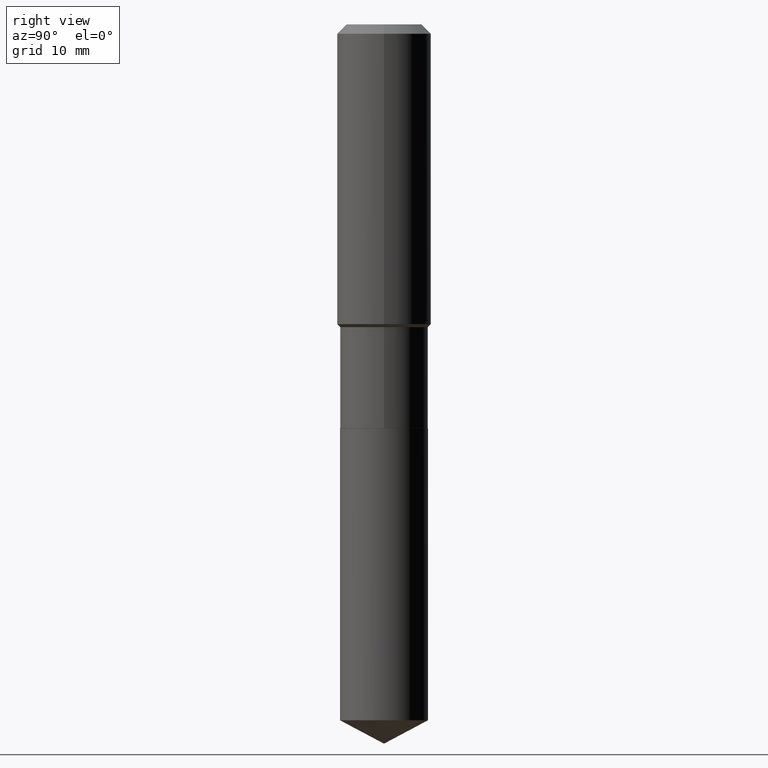
[diagram: clean part render]
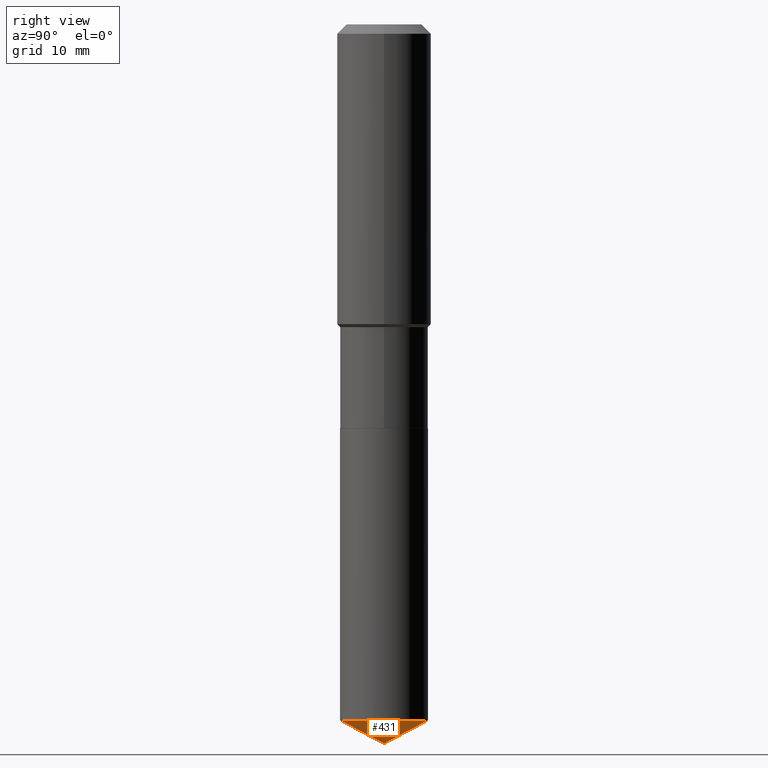
[diagram: same view with one face highlighted and labeled with its STEP entity id]
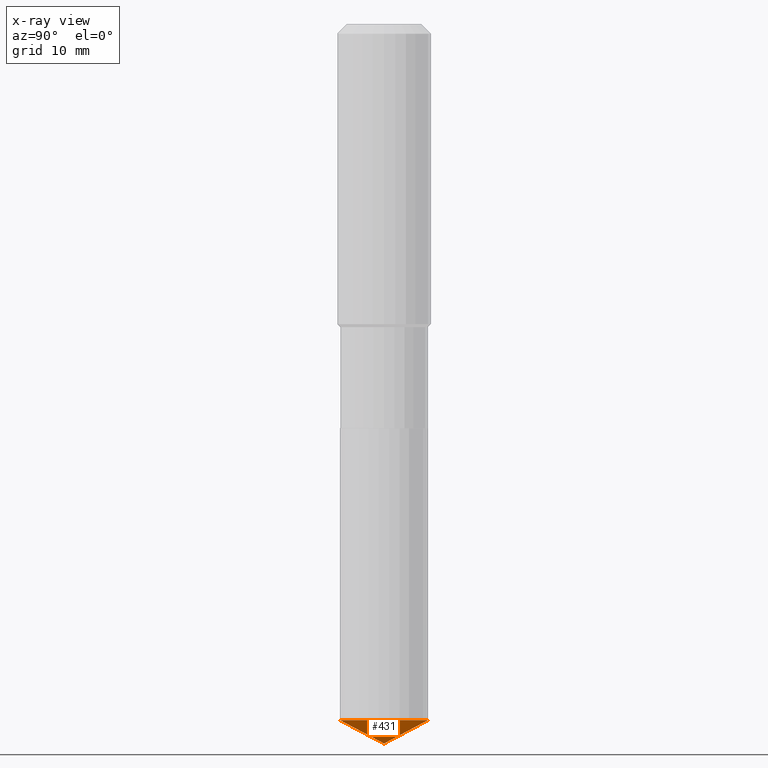
[diagram: x-ray of the same camera — body ghosted, the highlighted face saturated]
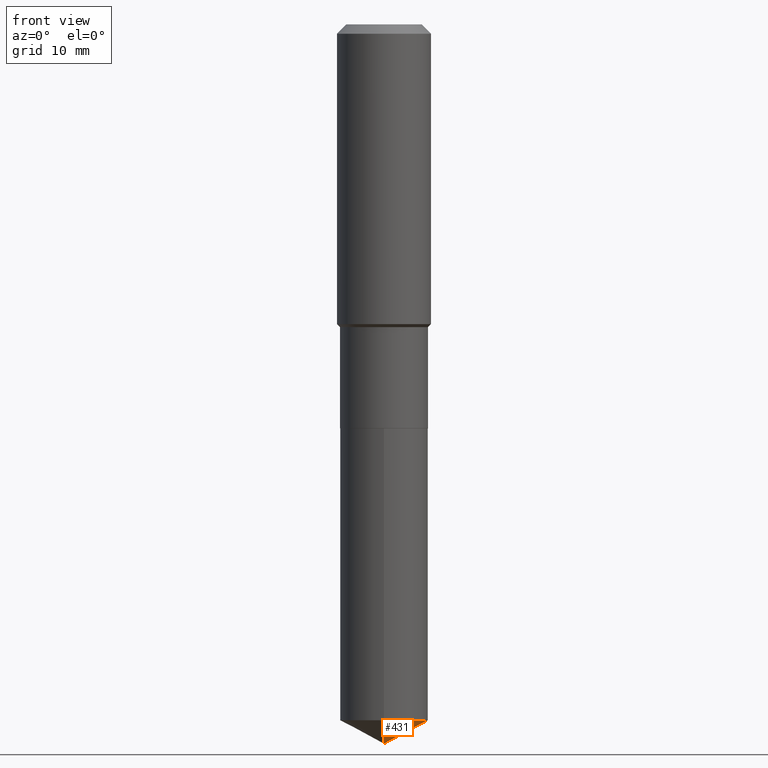
[diagram: same view with one face highlighted and labeled with its STEP entity id]
A machine part, right view. The second image highlights one B-rep face of the part: STEP entity #431.
The next image is the same camera in x-ray: the body ghosted, the highlighted face saturated — about 0% of this face is hidden behind the body in this view.
A second angle (front view) of the same face is appended — the face is thin or edge-on in the first view.
In plain terms, the highlighted conical surface has half-angle 62 deg.
Its self-contained STEP definition (entity closure, byte-faithful):
#4 = CARTESIAN_POINT ( 'NONE',  ( 1.030189574577574283E-28, -1.470805283457749786E-14, -4.212600000000000122 ) ) ;
#28 = VERTEX_POINT ( 'NONE', #275 ) ;
#52 = DIRECTION ( 'NONE',  ( -2.445495569307621090E-29, 3.491443012528485413E-15, 1.000000000000000000 ) ) ;
#93 = DIRECTION ( 'NONE',  ( 6.273719981627760554E-15, 0.8829475928589289868, 0.4694715627858866425 ) ) ;
#101 = VERTEX_POINT ( 'NONE', #119 ) ;
#119 = CARTESIAN_POINT ( 'NONE',  ( 1.030189463526528547E-28, -1.470805283457749786E-14, -4.212600000000000122 ) ) ;
#126 = DIRECTION ( 'NONE',  ( -6.165590087286829718E-15, -0.8829475928589257672, 0.4694715627858929707 ) ) ;
#171 = EDGE_CURVE ( 'NONE', #101, #28, #340, .T. ) ;
#175 = LINE ( 'NONE', #355, #458 ) ;
#211 = CARTESIAN_POINT ( 'NONE',  ( -8.597752180862979327E-28, 1.227502428053811181E-13, 35.15747874015747954 ) ) ;
#262 = ORIENTED_EDGE ( 'NONE', *, *, #171, .T. ) ;
#270 = ORIENTED_EDGE ( 'NONE', *, *, #423, .F. ) ;
#275 = CARTESIAN_POINT ( 'NONE',  ( 1.831779172789638277E-15, 0.2577999999999858183, -4.075525308517672585 ) ) ;
#279 = VECTOR ( 'NONE', #93, 39.37007874015748854 ) ;
#281 = CIRCLE ( 'NONE', #345, 0.2577999999999999736 ) ;
#316 = DIRECTION ( 'NONE',  ( -6.982962677686265133E-15, -1.000000000000000000, 3.541896320645570335E-15 ) ) ;
#323 = CONICAL_SURFACE ( 'NONE', #367, 74.04434902938334062, 1.082104136236485381 ) ;
#332 = CARTESIAN_POINT ( 'NONE',  ( -1.800207778307420165E-15, -0.2578000000000142955, -4.075525308517669920 ) ) ;
#340 = LINE ( 'NONE', #4, #279 ) ;
#345 = AXIS2_PLACEMENT_3D ( 'NONE', #464, #52, #391 ) ;
#350 = FACE_OUTER_BOUND ( 'NONE', #388, .T. ) ;
#355 = CARTESIAN_POINT ( 'NONE',  ( 1.030176799216968900E-28, -1.470823419469847016E-14, -4.212600000000000122 ) ) ;
#363 = VERTEX_POINT ( 'NONE', #332 ) ;
#367 = AXIS2_PLACEMENT_3D ( 'NONE', #211, #433, #316 ) ;
#388 = EDGE_LOOP ( 'NONE', ( #445, #262, #270 ) ) ;
#391 = DIRECTION ( 'NONE',  ( -6.982962677686265922E-15, -1.000000000000000000, 4.238709066973255853E-15 ) ) ;
#423 = EDGE_CURVE ( 'NONE', #363, #28, #281, .T. ) ;
#431 = ADVANCED_FACE ( 'NONE', ( #350 ), #323, .T. ) ;
#433 = DIRECTION ( 'NONE',  ( -2.445495569307621090E-29, 3.491443012528485413E-15, 1.000000000000000000 ) ) ;
#437 = EDGE_CURVE ( 'NONE', #101, #363, #175, .T. ) ;
#445 = ORIENTED_EDGE ( 'NONE', *, *, #437, .F. ) ;
#458 = VECTOR ( 'NONE', #126, 39.37007874015748143 ) ;
#464 = CARTESIAN_POINT ( 'NONE',  ( 9.966615763033243372E-29, -1.422955504086751126E-14, -4.075525308517671697 ) ) ;